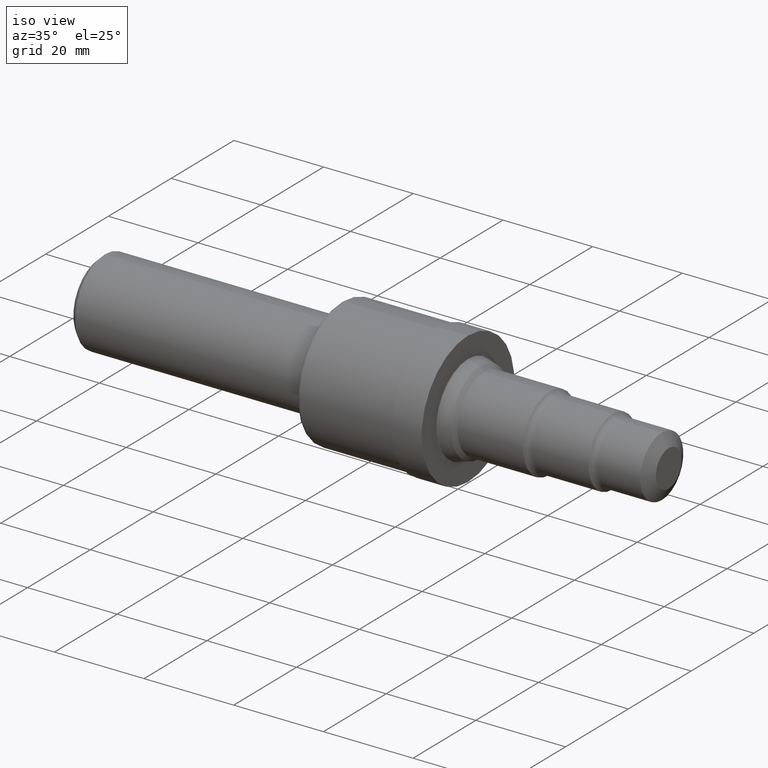
[diagram: clean part render]
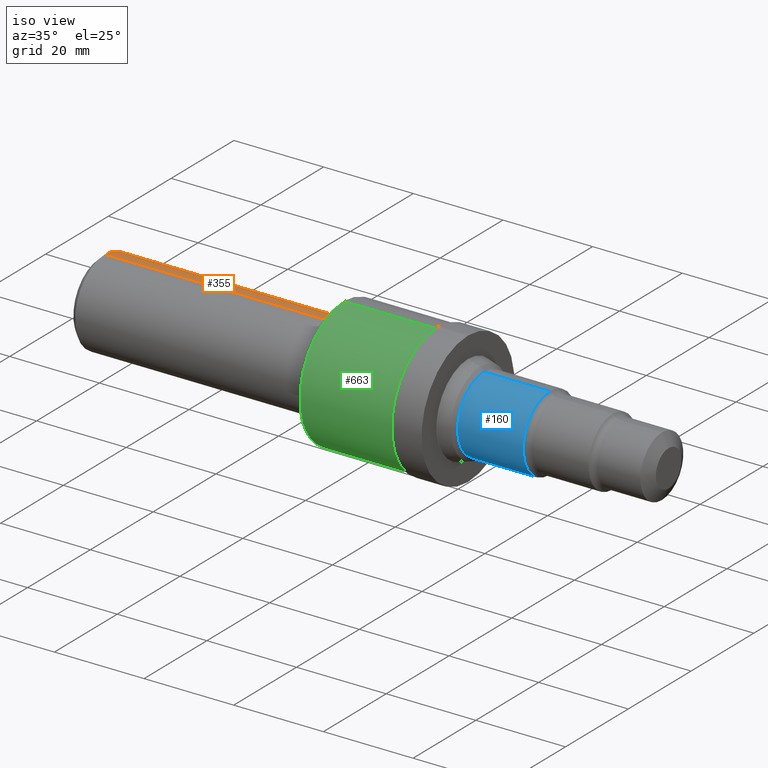
[diagram: same view with three faces highlighted in distinct colors, each labeled with its STEP entity id]
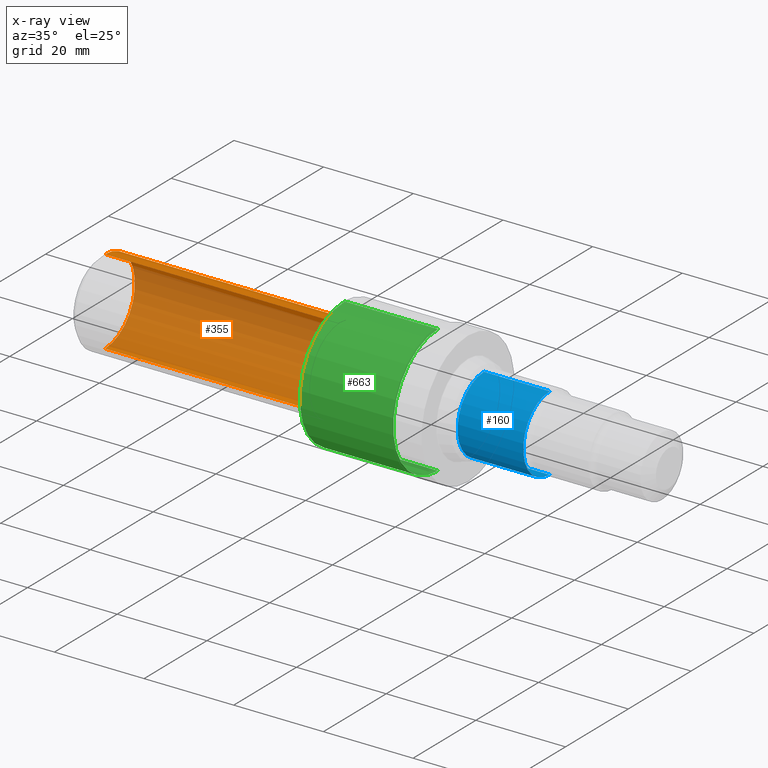
[diagram: x-ray of the same camera — body ghosted, the three highlighted faces saturated]
A machine part, iso view with three faces highlighted in distinct colors.
The next image is the same camera in x-ray (body ghosted, the three faces saturated) — at least one of them is partly hidden behind the body in this view.
Their STEP definitions:

[orange] entity #355 — the highlighted cylindrical surface (partial cylindrical patch) has radius 9.5212 mm, axis along (-1, -0, -0).
#118 = EDGE_CURVE ( 'NONE', #606, #169, #563, .T. ) ;
#153 = DIRECTION ( 'NONE',  ( 0.0000000000000000000, 0.0000000000000000000, 1.000000000000000000 ) ) ;
#169 = VERTEX_POINT ( 'NONE', #191 ) ;
#174 = DIRECTION ( 'NONE',  ( 0.0000000000000000000, 0.0000000000000000000, 1.000000000000000000 ) ) ;
#191 = CARTESIAN_POINT ( 'NONE',  ( 0.05000000000000000278, 0.0000000000000000000, -0.3748500000000000165 ) ) ;
#201 = CYLINDRICAL_SURFACE ( 'NONE', #471, 0.3748500000000002386 ) ;
#203 = VECTOR ( 'NONE', #422, 39.37007874015748143 ) ;
#206 = ORIENTED_EDGE ( 'NONE', *, *, #254, .F. ) ;
#221 = DIRECTION ( 'NONE',  ( -1.000000000000000000, -0.0000000000000000000, -0.0000000000000000000 ) ) ;
#254 = EDGE_CURVE ( 'NONE', #276, #169, #289, .T. ) ;
#259 = EDGE_CURVE ( 'NONE', #851, #276, #693, .T. ) ;
#271 = AXIS2_PLACEMENT_3D ( 'NONE', #406, #442, #936 ) ;
#276 = VERTEX_POINT ( 'NONE', #694 ) ;
#278 = ORIENTED_EDGE ( 'NONE', *, *, #118, .T. ) ;
#289 = CIRCLE ( 'NONE', #735, 0.3748500000000000165 ) ;
#352 = CARTESIAN_POINT ( 'NONE',  ( 0.0000000000000000000, 4.590588526603856213E-17, -0.3748500000000002386 ) ) ;
#355 = ADVANCED_FACE ( 'NONE', ( #598 ), #201, .T. ) ;
#380 = ORIENTED_EDGE ( 'NONE', *, *, #592, .T. ) ;
#406 = CARTESIAN_POINT ( 'NONE',  ( 2.094999999999999751, 0.0000000000000000000, 0.0000000000000000000 ) ) ;
#422 = DIRECTION ( 'NONE',  ( -1.000000000000000000, -0.0000000000000000000, -0.0000000000000000000 ) ) ;
#433 = ORIENTED_EDGE ( 'NONE', *, *, #259, .F. ) ;
#436 = EDGE_LOOP ( 'NONE', ( #380, #278, #206, #433 ) ) ;
#442 = DIRECTION ( 'NONE',  ( -1.000000000000000000, -0.0000000000000000000, -0.0000000000000000000 ) ) ;
#471 = AXIS2_PLACEMENT_3D ( 'NONE', #845, #834, #153 ) ;
#480 = VECTOR ( 'NONE', #537, 39.37007874015748143 ) ;
#483 = CARTESIAN_POINT ( 'NONE',  ( 2.094999999999999751, 4.590588526603859294E-17, -0.3748500000000005161 ) ) ;
#537 = DIRECTION ( 'NONE',  ( -1.000000000000000000, -0.0000000000000000000, -0.0000000000000000000 ) ) ;
#563 = LINE ( 'NONE', #352, #203 ) ;
#592 = EDGE_CURVE ( 'NONE', #851, #606, #840, .T. ) ;
#598 = FACE_OUTER_BOUND ( 'NONE', #436, .T. ) ;
#601 = CARTESIAN_POINT ( 'NONE',  ( 2.094999999999999751, 0.0000000000000000000, 0.3748500000000005161 ) ) ;
#606 = VERTEX_POINT ( 'NONE', #483 ) ;
#693 = LINE ( 'NONE', #921, #480 ) ;
#694 = CARTESIAN_POINT ( 'NONE',  ( 0.05000000000000000278, 4.590588526603853748E-17, 0.3748500000000000165 ) ) ;
#710 = CARTESIAN_POINT ( 'NONE',  ( 0.05000000000000000278, 0.0000000000000000000, 0.0000000000000000000 ) ) ;
#735 = AXIS2_PLACEMENT_3D ( 'NONE', #710, #221, #174 ) ;
#834 = DIRECTION ( 'NONE',  ( -1.000000000000000000, -0.0000000000000000000, -0.0000000000000000000 ) ) ;
#840 = CIRCLE ( 'NONE', #271, 0.3748500000000005161 ) ;
#845 = CARTESIAN_POINT ( 'NONE',  ( 0.0000000000000000000, 0.0000000000000000000, 0.0000000000000000000 ) ) ;
#851 = VERTEX_POINT ( 'NONE', #601 ) ;
#921 = CARTESIAN_POINT ( 'NONE',  ( 0.0000000000000000000, 0.0000000000000000000, 0.3748500000000002386 ) ) ;
#936 = DIRECTION ( 'NONE',  ( 0.0000000000000000000, 0.0000000000000000000, 1.000000000000000000 ) ) ;

[blue] entity #160 — the highlighted cylindrical surface (partial cylindrical patch) has radius 8.4201 mm, axis along (-1, -0, -0).
#9 = CARTESIAN_POINT ( 'NONE',  ( 3.955000000000000515, 0.0000000000000000000, 0.0000000000000000000 ) ) ;
#71 = DIRECTION ( 'NONE',  ( -1.000000000000000000, -0.0000000000000000000, -0.0000000000000000000 ) ) ;
#75 = EDGE_CURVE ( 'NONE', #275, #766, #731, .T. ) ;
#76 = LINE ( 'NONE', #904, #622 ) ;
#83 = AXIS2_PLACEMENT_3D ( 'NONE', #839, #616, #945 ) ;
#133 = FACE_OUTER_BOUND ( 'NONE', #322, .T. ) ;
#160 = ADVANCED_FACE ( 'NONE', ( #133 ), #761, .T. ) ;
#193 = DIRECTION ( 'NONE',  ( 0.0000000000000000000, 0.0000000000000000000, 1.000000000000000000 ) ) ;
#234 = EDGE_CURVE ( 'NONE', #772, #275, #76, .T. ) ;
#247 = CARTESIAN_POINT ( 'NONE',  ( 0.0000000000000000000, 0.0000000000000000000, 0.3314999999999999059 ) ) ;
#260 = CARTESIAN_POINT ( 'NONE',  ( 3.378561487217439208, 4.265208978650781218E-17, -0.3314999999999999059 ) ) ;
#275 = VERTEX_POINT ( 'NONE', #260 ) ;
#282 = ORIENTED_EDGE ( 'NONE', *, *, #75, .F. ) ;
#322 = EDGE_LOOP ( 'NONE', ( #737, #677, #615, #282 ) ) ;
#348 = CIRCLE ( 'NONE', #704, 0.3314999999999999059 ) ;
#391 = DIRECTION ( 'NONE',  ( -1.000000000000000000, -0.0000000000000000000, -0.0000000000000000000 ) ) ;
#402 = EDGE_CURVE ( 'NONE', #752, #766, #749, .T. ) ;
#450 = DIRECTION ( 'NONE',  ( -1.000000000000000000, -0.0000000000000000000, -0.0000000000000000000 ) ) ;
#476 = CARTESIAN_POINT ( 'NONE',  ( 3.955000000000000515, 0.0000000000000000000, 0.3314999999999999059 ) ) ;
#551 = DIRECTION ( 'NONE',  ( 0.0000000000000000000, 0.0000000000000000000, 1.000000000000000000 ) ) ;
#575 = VECTOR ( 'NONE', #391, 39.37007874015748143 ) ;
#581 = CARTESIAN_POINT ( 'NONE',  ( 0.0000000000000000000, 0.0000000000000000000, 0.0000000000000000000 ) ) ;
#615 = ORIENTED_EDGE ( 'NONE', *, *, #402, .T. ) ;
#616 = DIRECTION ( 'NONE',  ( -1.000000000000000000, -0.0000000000000000000, -0.0000000000000000000 ) ) ;
#622 = VECTOR ( 'NONE', #450, 39.37007874015748143 ) ;
#623 = AXIS2_PLACEMENT_3D ( 'NONE', #581, #71, #193 ) ;
#677 = ORIENTED_EDGE ( 'NONE', *, *, #714, .T. ) ;
#704 = AXIS2_PLACEMENT_3D ( 'NONE', #9, #897, #551 ) ;
#714 = EDGE_CURVE ( 'NONE', #772, #752, #348, .T. ) ;
#731 = CIRCLE ( 'NONE', #83, 0.3314999999999999059 ) ;
#737 = ORIENTED_EDGE ( 'NONE', *, *, #234, .F. ) ;
#749 = LINE ( 'NONE', #247, #575 ) ;
#752 = VERTEX_POINT ( 'NONE', #476 ) ;
#761 = CYLINDRICAL_SURFACE ( 'NONE', #623, 0.3314999999999999059 ) ;
#766 = VERTEX_POINT ( 'NONE', #838 ) ;
#772 = VERTEX_POINT ( 'NONE', #864 ) ;
#838 = CARTESIAN_POINT ( 'NONE',  ( 3.378561487217439208, 0.0000000000000000000, 0.3314999999999999059 ) ) ;
#839 = CARTESIAN_POINT ( 'NONE',  ( 3.378561487217439208, 0.0000000000000000000, 0.0000000000000000000 ) ) ;
#864 = CARTESIAN_POINT ( 'NONE',  ( 3.955000000000000515, 4.059704139173475521E-17, -0.3314999999999999059 ) ) ;
#897 = DIRECTION ( 'NONE',  ( -1.000000000000000000, -0.0000000000000000000, -0.0000000000000000000 ) ) ;
#904 = CARTESIAN_POINT ( 'NONE',  ( 0.0000000000000000000, 4.059704139173475521E-17, -0.3314999999999999059 ) ) ;
#945 = DIRECTION ( 'NONE',  ( 0.0000000000000000000, 0.0000000000000000000, 1.000000000000000000 ) ) ;

[green] entity #663 — the highlighted cylindrical surface (partial cylindrical patch) has radius 14.2875 mm, axis along (-1, -0, -0).
#10 = CARTESIAN_POINT ( 'NONE',  ( 0.0000000000000000000, 6.888638245203860712E-17, -0.5624999999999998890 ) ) ;
#14 = AXIS2_PLACEMENT_3D ( 'NONE', #263, #726, #196 ) ;
#37 = FACE_OUTER_BOUND ( 'NONE', #543, .T. ) ;
#52 = VECTOR ( 'NONE', #656, 39.37007874015748143 ) ;
#80 = VERTEX_POINT ( 'NONE', #884 ) ;
#86 = CIRCLE ( 'NONE', #515, 0.5625000000000000000 ) ;
#100 = LINE ( 'NONE', #10, #855 ) ;
#115 = CARTESIAN_POINT ( 'NONE',  ( 2.975000000000000533, 0.0000000000000000000, 0.0000000000000000000 ) ) ;
#147 = VERTEX_POINT ( 'NONE', #264 ) ;
#150 = DIRECTION ( 'NONE',  ( 0.0000000000000000000, 0.0000000000000000000, 1.000000000000000000 ) ) ;
#196 = DIRECTION ( 'NONE',  ( 0.0000000000000000000, 0.0000000000000000000, 1.000000000000000000 ) ) ;
#198 = VERTEX_POINT ( 'NONE', #399 ) ;
#209 = ORIENTED_EDGE ( 'NONE', *, *, #566, .T. ) ;
#263 = CARTESIAN_POINT ( 'NONE',  ( 0.0000000000000000000, 0.0000000000000000000, 0.0000000000000000000 ) ) ;
#264 = CARTESIAN_POINT ( 'NONE',  ( 2.154999999999999805, 6.888638245203860712E-17, -0.5624999999999998890 ) ) ;
#342 = ORIENTED_EDGE ( 'NONE', *, *, #759, .F. ) ;
#399 = CARTESIAN_POINT ( 'NONE',  ( 2.975000000000000533, 0.0000000000000000000, 0.5625000000000000000 ) ) ;
#417 = AXIS2_PLACEMENT_3D ( 'NONE', #591, #861, #630 ) ;
#421 = CIRCLE ( 'NONE', #417, 0.5624999999999998890 ) ;
#515 = AXIS2_PLACEMENT_3D ( 'NONE', #115, #564, #150 ) ;
#543 = EDGE_LOOP ( 'NONE', ( #342, #209, #775, #728 ) ) ;
#557 = CARTESIAN_POINT ( 'NONE',  ( 2.975000000000000533, 6.888638245203861944E-17, -0.5625000000000001110 ) ) ;
#564 = DIRECTION ( 'NONE',  ( -1.000000000000000000, -0.0000000000000000000, -0.0000000000000000000 ) ) ;
#566 = EDGE_CURVE ( 'NONE', #906, #198, #86, .T. ) ;
#591 = CARTESIAN_POINT ( 'NONE',  ( 2.154999999999999805, 0.0000000000000000000, 0.0000000000000000000 ) ) ;
#613 = EDGE_CURVE ( 'NONE', #147, #80, #421, .T. ) ;
#630 = DIRECTION ( 'NONE',  ( 0.0000000000000000000, 0.0000000000000000000, 1.000000000000000000 ) ) ;
#656 = DIRECTION ( 'NONE',  ( -1.000000000000000000, -0.0000000000000000000, -0.0000000000000000000 ) ) ;
#663 = ADVANCED_FACE ( 'NONE', ( #37 ), #750, .T. ) ;
#709 = CARTESIAN_POINT ( 'NONE',  ( 0.0000000000000000000, 0.0000000000000000000, 0.5624999999999998890 ) ) ;
#726 = DIRECTION ( 'NONE',  ( -1.000000000000000000, -0.0000000000000000000, -0.0000000000000000000 ) ) ;
#728 = ORIENTED_EDGE ( 'NONE', *, *, #613, .F. ) ;
#750 = CYLINDRICAL_SURFACE ( 'NONE', #14, 0.5624999999999998890 ) ;
#759 = EDGE_CURVE ( 'NONE', #906, #147, #100, .T. ) ;
#775 = ORIENTED_EDGE ( 'NONE', *, *, #822, .T. ) ;
#822 = EDGE_CURVE ( 'NONE', #198, #80, #824, .T. ) ;
#824 = LINE ( 'NONE', #709, #52 ) ;
#855 = VECTOR ( 'NONE', #870, 39.37007874015748143 ) ;
#861 = DIRECTION ( 'NONE',  ( -1.000000000000000000, -0.0000000000000000000, -0.0000000000000000000 ) ) ;
#870 = DIRECTION ( 'NONE',  ( -1.000000000000000000, -0.0000000000000000000, -0.0000000000000000000 ) ) ;
#884 = CARTESIAN_POINT ( 'NONE',  ( 2.154999999999999805, 0.0000000000000000000, 0.5624999999999998890 ) ) ;
#906 = VERTEX_POINT ( 'NONE', #557 ) ;